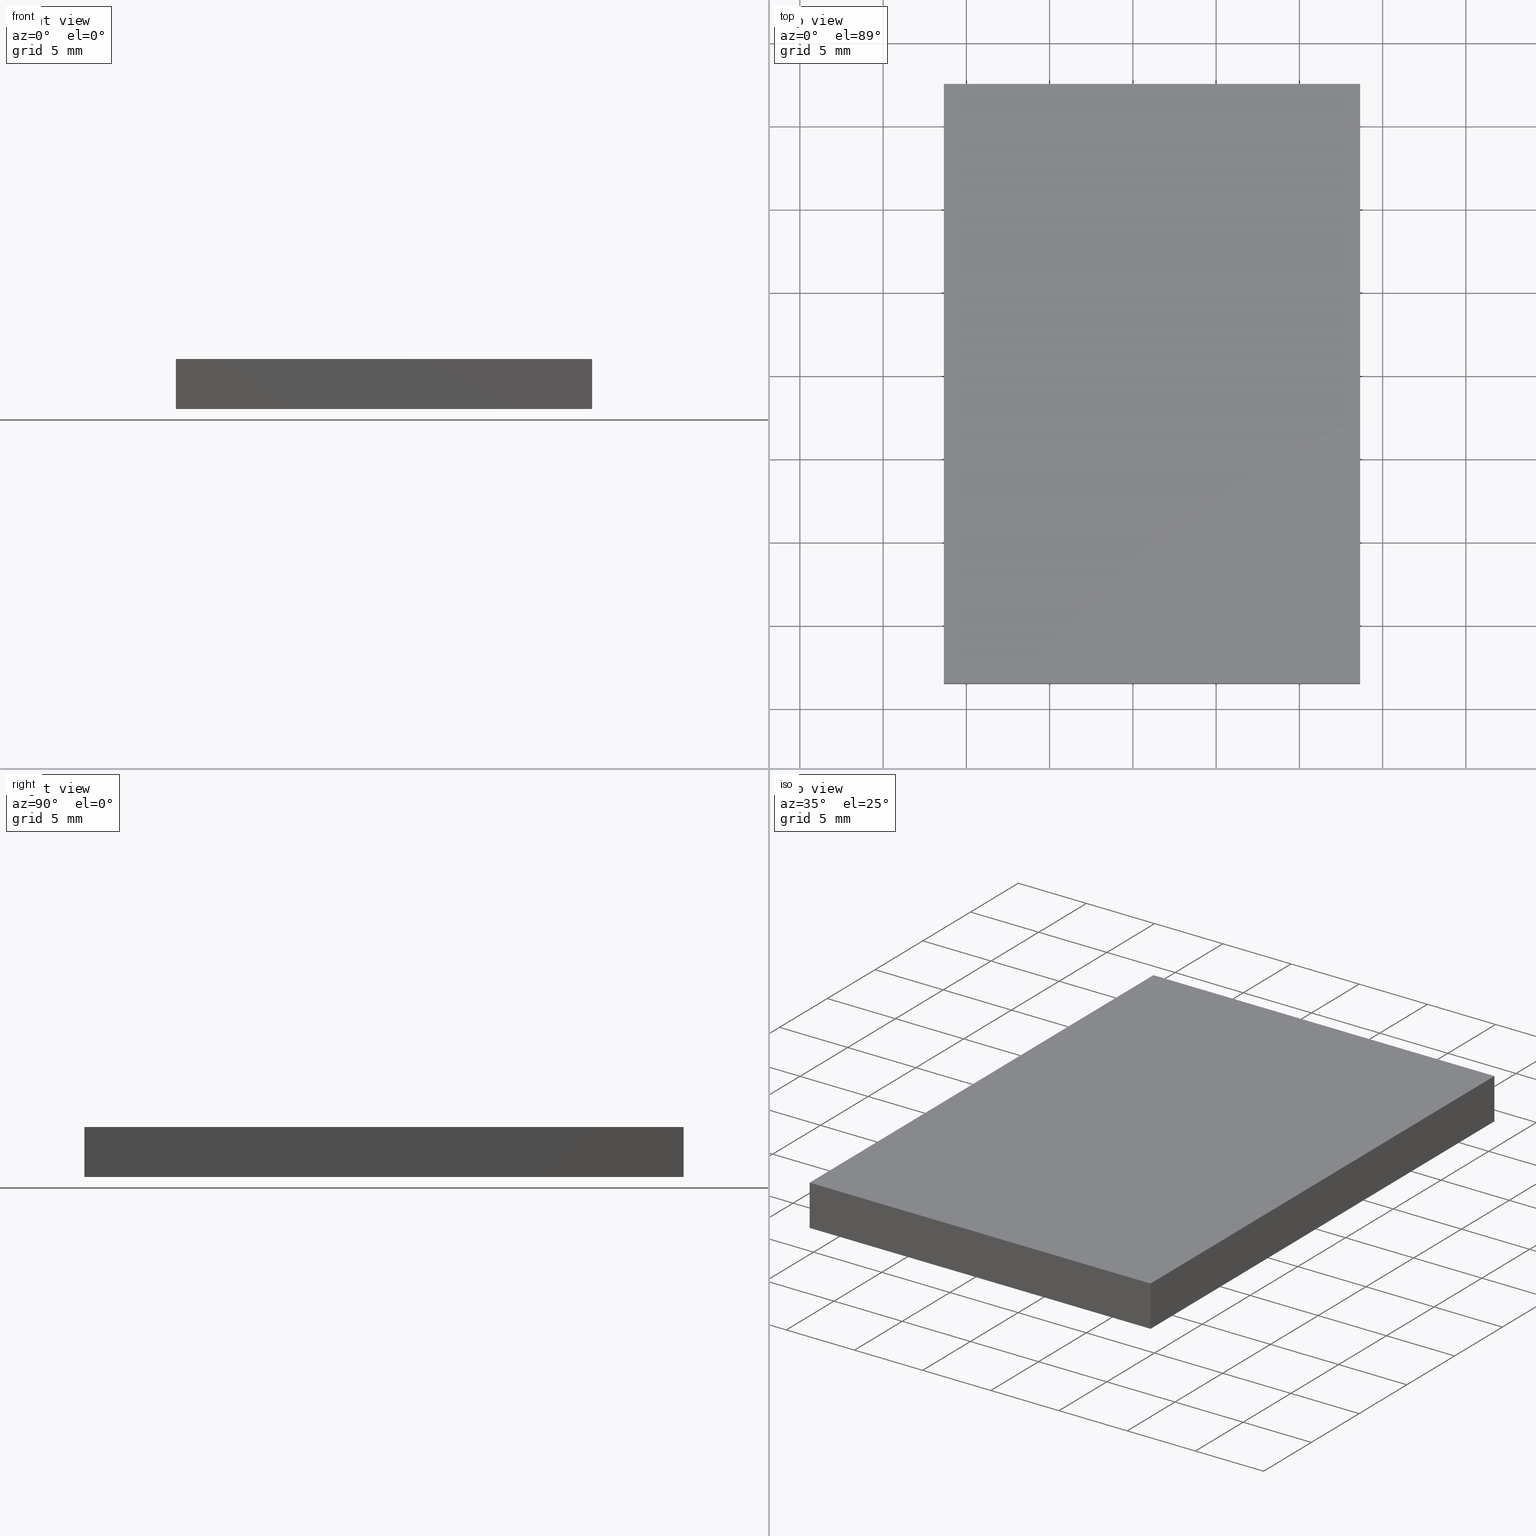
[diagram: canonical four-view strip — front | top / right | iso, engineering-drawing reading convention]
A machine part, canonical four-view strip (front | top / right | iso — engineering-drawing reading convention). The complete STEP part file that produces these views, byte-faithful:
ISO-10303-21;
HEADER;
FILE_DESCRIPTION (( 'STEP AP203' ),
    '1' );
FILE_NAME ('340521.STEP',
    '2019-07-30T07:28:20',
    ( '' ),
    ( '' ),
    'SwSTEP 2.0',
    'SolidWorks 2016',
    '' );
FILE_SCHEMA (( 'CONFIG_CONTROL_DESIGN' ));
ENDSEC;

DATA;
#1 = LINE ( 'NONE', #219, #186 ) ;
#2 = CC_DESIGN_DATE_AND_TIME_ASSIGNMENT ( #232, #275, ( #20 ) ) ;
#3 = ORIENTED_EDGE ( 'NONE', *, *, #249, .F. ) ;
#4 = LOCAL_TIME ( 15, 28, 20.00000000000000000, #71 ) ;
#5 = DESIGN_CONTEXT ( 'detailed design', #97, 'design' ) ;
#6 = APPROVAL ( #56, 'δָ��' ) ;
#7 = APPROVAL_ROLE ( '' ) ;
#8 = PERSON_AND_ORGANIZATION ( #128, #28 ) ;
#9 = ORIENTED_EDGE ( 'NONE', *, *, #183, .F. ) ;
#10 = DATE_TIME_ROLE ( 'classification_date' ) ;
#11 = CC_DESIGN_APPROVAL ( #281, ( #178 ) ) ;
#12 = AXIS2_PLACEMENT_3D ( 'NONE', #62, #89, #265 ) ;
#13 = CARTESIAN_POINT ( 'NONE',  ( 18.64837398373983700, 7.520325203252024700, 3.000000000000000000 ) ) ;
#14 = VECTOR ( 'NONE', #17, 1000.000000000000000 ) ;
#15 = ADVANCED_FACE ( 'NONE', ( #297 ), #213, .F. ) ;
#16 = CARTESIAN_POINT ( 'NONE',  ( -6.351626016260162500, 7.520325203252024700, 3.000000000000000000 ) ) ;
#17 = DIRECTION ( 'NONE',  ( -0.0000000000000000000, -0.0000000000000000000, -1.000000000000000000 ) ) ;
#18 = COORDINATED_UNIVERSAL_TIME_OFFSET ( 8, 0, .AHEAD. ) ;
#19 = DIRECTION ( 'NONE',  ( 1.000000000000000000, 0.0000000000000000000, 0.0000000000000000000 ) ) ;
#20 = SECURITY_CLASSIFICATION ( '', '', #280 ) ;
#21 = DIRECTION ( 'NONE',  ( 1.204669080539449300E-016, -1.000000000000000000, 0.0000000000000000000 ) ) ;
#22 = DIRECTION ( 'NONE',  ( -0.0000000000000000000, -0.0000000000000000000, -1.000000000000000000 ) ) ;
#23 = DIRECTION ( 'NONE',  ( 1.000000000000000000, 0.0000000000000000000, 0.0000000000000000000 ) ) ;
#24 = DATE_AND_TIME ( #214, #27 ) ;
#25 = LINE ( 'NONE', #305, #14 ) ;
#26 = PERSON_AND_ORGANIZATION_ROLE ( 'creator' ) ;
#27 = LOCAL_TIME ( 15, 28, 20.00000000000000000, #238 ) ;
#28 = ORGANIZATION ( 'δָ��', 'δָ��', '' ) ;
#29 = VERTEX_POINT ( 'NONE', #143 ) ;
#30 = VECTOR ( 'NONE', #21, 1000.000000000000000 ) ;
#31 = ORIENTED_EDGE ( 'NONE', *, *, #217, .T. ) ;
#32 = CC_DESIGN_PERSON_AND_ORGANIZATION_ASSIGNMENT ( #57, #182, ( #178 ) ) ;
#33 = DATE_AND_TIME ( #125, #76 ) ;
#34 = CC_DESIGN_PERSON_AND_ORGANIZATION_ASSIGNMENT ( #146, #107, ( #222 ) ) ;
#35 = EDGE_CURVE ( 'NONE', #29, #68, #269, .T. ) ;
#36 = APPROVAL_ROLE ( '' ) ;
#37 = LINE ( 'NONE', #46, #116 ) ;
#38 = ORIENTED_EDGE ( 'NONE', *, *, #217, .F. ) ;
#39 = PERSON_AND_ORGANIZATION ( #128, #28 ) ;
#40 = DIRECTION ( 'NONE',  ( -1.000000000000000000, -0.0000000000000000000, -0.0000000000000000000 ) ) ;
#41 = COORDINATED_UNIVERSAL_TIME_OFFSET ( 8, 0, .AHEAD. ) ;
#42 = VECTOR ( 'NONE', #23, 1000.000000000000000 ) ;
#43 = CARTESIAN_POINT ( 'NONE',  ( -6.351626016260158100, -28.47967479674797200, 0.0000000000000000000 ) ) ;
#44 = CC_DESIGN_APPROVAL ( #133, ( #114 ) ) ;
#45 = CC_DESIGN_DATE_AND_TIME_ASSIGNMENT ( #49, #109, ( #178 ) ) ;
#46 = CARTESIAN_POINT ( 'NONE',  ( -6.351626016260162500, 7.520325203252024700, 0.0000000000000000000 ) ) ;
#47 = DATE_TIME_ROLE ( 'creation_date' ) ;
#48 = APPROVAL_PERSON_ORGANIZATION ( #160, #6, #36 ) ;
#49 = DATE_AND_TIME ( #307, #272 ) ;
#50 = AXIS2_PLACEMENT_3D ( 'NONE', #112, #286, #237 ) ;
#51 = PERSON_AND_ORGANIZATION ( #128, #28 ) ;
#52 = ORIENTED_EDGE ( 'NONE', *, *, #249, .T. ) ;
#53 = CC_DESIGN_APPROVAL ( #227, ( #245 ) ) ;
#54 = APPROVAL_DATE_TIME ( #105, #132 ) ;
#55 = PERSON_AND_ORGANIZATION ( #128, #28 ) ;
#56 = APPROVAL_STATUS ( 'not_yet_approved' ) ;
#57 = PERSON_AND_ORGANIZATION ( #128, #28 ) ;
#58 = FACE_OUTER_BOUND ( 'NONE', #164, .T. ) ;
#59 = ORIENTED_EDGE ( 'NONE', *, *, #35, .T. ) ;
#60 = APPLICATION_CONTEXT ( 'configuration controlled 3d designs of mechanical parts and assemblies' ) ;
#61 = AXIS2_PLACEMENT_3D ( 'NONE', #174, #293, #199 ) ;
#62 = CARTESIAN_POINT ( 'NONE',  ( -6.351626016260158100, -28.47967479674797200, 3.000000000000000000 ) ) ;
#63 = FACE_OUTER_BOUND ( 'NONE', #135, .T. ) ;
#64 = CARTESIAN_POINT ( 'NONE',  ( 18.64837398373983700, 7.520325203252024700, 0.0000000000000000000 ) ) ;
#65 = CARTESIAN_POINT ( 'NONE',  ( -6.351626016260158100, -28.47967479674797200, 3.000000000000000000 ) ) ;
#66 =( LENGTH_UNIT ( ) NAMED_UNIT ( * ) SI_UNIT ( .MILLI., .METRE. ) );
#67 = CALENDAR_DATE ( 2019, 30, 7 ) ;
#68 = VERTEX_POINT ( 'NONE', #13 ) ;
#69 = DIRECTION ( 'NONE',  ( -0.0000000000000000000, -0.0000000000000000000, -1.000000000000000000 ) ) ;
#70 = CARTESIAN_POINT ( 'NONE',  ( 0.0000000000000000000, 0.0000000000000000000, 0.0000000000000000000 ) ) ;
#71 = COORDINATED_UNIVERSAL_TIME_OFFSET ( 8, 0, .AHEAD. ) ;
#72 = CC_DESIGN_PERSON_AND_ORGANIZATION_ASSIGNMENT ( #8, #85, ( #245 ) ) ;
#73 = ORIENTED_EDGE ( 'NONE', *, *, #154, .F. ) ;
#74 = CARTESIAN_POINT ( 'NONE',  ( 0.0000000000000000000, 0.0000000000000000000, 0.0000000000000000000 ) ) ;
#75 = APPLICATION_CONTEXT ( 'configuration controlled 3d designs of mechanical parts and assemblies' ) ;
#76 = LOCAL_TIME ( 15, 28, 20.00000000000000000, #98 ) ;
#77 = LOCAL_TIME ( 15, 28, 20.00000000000000000, #18 ) ;
#78 = ORIENTED_EDGE ( 'NONE', *, *, #279, .F. ) ;
#79 = CC_DESIGN_PERSON_AND_ORGANIZATION_ASSIGNMENT ( #176, #247, ( #194 ) ) ;
#80 = PERSON_AND_ORGANIZATION ( #128, #28 ) ;
#81 = ORIENTED_EDGE ( 'NONE', *, *, #291, .T. ) ;
#82 = PERSON_AND_ORGANIZATION_ROLE ( 'design_supplier' ) ;
#83 = PERSON_AND_ORGANIZATION ( #128, #28 ) ;
#84 = CALENDAR_DATE ( 2019, 30, 7 ) ;
#85 = PERSON_AND_ORGANIZATION_ROLE ( 'classification_officer' ) ;
#86 = LINE ( 'NONE', #310, #129 ) ;
#87 = FACE_OUTER_BOUND ( 'NONE', #234, .T. ) ;
#88 = PLANE ( 'NONE',  #12 ) ;
#89 = DIRECTION ( 'NONE',  ( 0.0000000000000000000, 1.000000000000000000, 0.0000000000000000000 ) ) ;
#90 = VECTOR ( 'NONE', #288, 1000.000000000000000 ) ;
#91 = CARTESIAN_POINT ( 'NONE',  ( -6.351626016260162500, 7.520325203252024700, 3.000000000000000000 ) ) ;
#92 = CARTESIAN_POINT ( 'NONE',  ( -6.351626016260162500, 7.520325203252024700, 3.000000000000000000 ) ) ;
#93 = DIRECTION ( 'NONE',  ( -0.0000000000000000000, -0.0000000000000000000, -1.000000000000000000 ) ) ;
#94 = FACE_OUTER_BOUND ( 'NONE', #140, .T. ) ;
#95 = LOCAL_TIME ( 15, 28, 20.00000000000000000, #41 ) ;
#96 = EDGE_CURVE ( 'NONE', #267, #224, #25, .T. ) ;
#97 = APPLICATION_CONTEXT ( 'configuration controlled 3d designs of mechanical parts and assemblies' ) ;
#98 = COORDINATED_UNIVERSAL_TIME_OFFSET ( 8, 0, .AHEAD. ) ;
#99 = VECTOR ( 'NONE', #40, 1000.000000000000000 ) ;
#100 = CC_DESIGN_PERSON_AND_ORGANIZATION_ASSIGNMENT ( #39, #26, ( #114 ) ) ;
#101 = AXIS2_PLACEMENT_3D ( 'NONE', #169, #285, #145 ) ;
#102 = DATE_AND_TIME ( #67, #77 ) ;
#103 = ORIENTED_EDGE ( 'NONE', *, *, #235, .T. ) ;
#104 = PRODUCT_DEFINITION_SHAPE ( 'NONE', 'NONE',  #114 ) ;
#105 = DATE_AND_TIME ( #134, #287 ) ;
#106 = DATE_AND_TIME ( #84, #216 ) ;
#107 = PERSON_AND_ORGANIZATION_ROLE ( 'design_supplier' ) ;
#108 = APPROVAL_STATUS ( 'not_yet_approved' ) ;
#109 = DATE_TIME_ROLE ( 'creation_date' ) ;
#110 = APPROVAL_PERSON_ORGANIZATION ( #195, #227, #141 ) ;
#111 = PERSON_AND_ORGANIZATION_ROLE ( 'design_owner' ) ;
#112 = CARTESIAN_POINT ( 'NONE',  ( 18.64837398373983700, 7.520325203252024700, 3.000000000000000000 ) ) ;
#113 = CC_DESIGN_DATE_AND_TIME_ASSIGNMENT ( #102, #47, ( #114 ) ) ;
#114 = PRODUCT_DEFINITION ( 'δ֪', '', #222, #5 ) ;
#115 = APPROVAL_PERSON_ORGANIZATION ( #263, #132, #7 ) ;
#116 = VECTOR ( 'NONE', #124, 1000.000000000000000 ) ;
#117 = PLANE ( 'NONE',  #123 ) ;
#118 = PLANE ( 'NONE',  #253 ) ;
#119 = CALENDAR_DATE ( 2019, 30, 7 ) ;
#120 = APPROVAL_PERSON_ORGANIZATION ( #303, #133, #155 ) ;
#121 = APPROVAL ( #108, 'δָ��' ) ;
#122 = VERTEX_POINT ( 'NONE', #165 ) ;
#123 = AXIS2_PLACEMENT_3D ( 'NONE', #215, #240, #268 ) ;
#124 = DIRECTION ( 'NONE',  ( 1.204669080539449300E-016, -1.000000000000000000, 0.0000000000000000000 ) ) ;
#125 = CALENDAR_DATE ( 2019, 30, 7 ) ;
#126 = LINE ( 'NONE', #64, #90 ) ;
#127 = DIRECTION ( 'NONE',  ( 0.0000000000000000000, 0.0000000000000000000, 1.000000000000000000 ) ) ;
#128 = PERSON ( 'δָ��', 'δָ��', 'δָ��', ('δָ��'), ('δָ��'), ('δָ��') ) ;
#129 = VECTOR ( 'NONE', #93, 1000.000000000000000 ) ;
#130 = CLOSED_SHELL ( 'NONE', ( #212, #162, #15, #139, #168, #257 ) ) ;
#131 = UNCERTAINTY_MEASURE_WITH_UNIT (LENGTH_MEASURE( 1.000000000000000100E-005 ), #66, 'distance_accuracy_value', 'NONE');
#132 = APPROVAL ( #300, 'δָ��' ) ;
#133 = APPROVAL ( #294, 'δָ��' ) ;
#134 = CALENDAR_DATE ( 2019, 30, 7 ) ;
#135 = EDGE_LOOP ( 'NONE', ( #81, #3, #255, #211 ) ) ;
#136 = APPROVAL_ROLE ( '' ) ;
#137 = SECURITY_CLASSIFICATION_LEVEL ( 'unclassified' ) ;
#138 = CALENDAR_DATE ( 2019, 30, 7 ) ;
#139 = ADVANCED_FACE ( 'NONE', ( #87 ), #236, .F. ) ;
#140 = EDGE_LOOP ( 'NONE', ( #208, #78, #229, #292 ) ) ;
#141 = APPROVAL_ROLE ( '' ) ;
#142 = PERSON_AND_ORGANIZATION_ROLE ( 'classification_officer' ) ;
#143 = CARTESIAN_POINT ( 'NONE',  ( 18.64837398373984800, -28.47967479674797200, 3.000000000000000000 ) ) ;
#144 = VECTOR ( 'NONE', #190, 1000.000000000000000 ) ;
#145 = DIRECTION ( 'NONE',  ( 0.0000000000000000000, -0.0000000000000000000, -1.000000000000000000 ) ) ;
#146 = PERSON_AND_ORGANIZATION ( #128, #28 ) ;
#147 = DIRECTION ( 'NONE',  ( -1.204669080539449300E-016, 1.000000000000000000, 0.0000000000000000000 ) ) ;
#148 = COORDINATED_UNIVERSAL_TIME_OFFSET ( 8, 0, .AHEAD. ) ;
#149 = EDGE_LOOP ( 'NONE', ( #103, #197, #59, #159 ) ) ;
#150 = DIRECTION ( 'NONE',  ( 1.000000000000000000, 0.0000000000000000000, 0.0000000000000000000 ) ) ;
#151 = DATE_AND_TIME ( #119, #254 ) ;
#152 = ORIENTED_EDGE ( 'NONE', *, *, #35, .F. ) ;
#153 = CARTESIAN_POINT ( 'NONE',  ( -6.351626016260162500, 7.520325203252024700, 3.000000000000000000 ) ) ;
#154 = EDGE_CURVE ( 'NONE', #122, #277, #126, .T. ) ;
#155 = APPROVAL_ROLE ( '' ) ;
#156 = APPROVAL_DATE_TIME ( #24, #6 ) ;
#157 = CC_DESIGN_APPROVAL ( #121, ( #222 ) ) ;
#158 =( GEOMETRIC_REPRESENTATION_CONTEXT ( 3 ) GLOBAL_UNCERTAINTY_ASSIGNED_CONTEXT ( ( #131 ) ) GLOBAL_UNIT_ASSIGNED_CONTEXT ( ( #66, #170, #241 ) ) REPRESENTATION_CONTEXT ( 'NONE', 'WORKASPACE' ) );
#159 = ORIENTED_EDGE ( 'NONE', *, *, #179, .T. ) ;
#160 = PERSON_AND_ORGANIZATION ( #128, #28 ) ;
#161 = CC_DESIGN_APPROVAL ( #6, ( #231 ) ) ;
#162 = ADVANCED_FACE ( 'NONE', ( #63 ), #88, .F. ) ;
#163 = DATE_AND_TIME ( #202, #95 ) ;
#164 = EDGE_LOOP ( 'NONE', ( #9, #38, #73, #187 ) ) ;
#165 = CARTESIAN_POINT ( 'NONE',  ( 18.64837398373984800, -28.47967479674797200, 0.0000000000000000000 ) ) ;
#166 = CC_DESIGN_APPROVAL ( #132, ( #20 ) ) ;
#167 = COORDINATED_UNIVERSAL_TIME_OFFSET ( 8, 0, .AHEAD. ) ;
#168 = ADVANCED_FACE ( 'NONE', ( #228 ), #117, .T. ) ;
#169 = CARTESIAN_POINT ( 'NONE',  ( -6.351626016260162500, 7.520325203252024700, 3.000000000000000000 ) ) ;
#170 =( NAMED_UNIT ( * ) PLANE_ANGLE_UNIT ( ) SI_UNIT ( $, .RADIAN. ) );
#171 = CC_DESIGN_PERSON_AND_ORGANIZATION_ASSIGNMENT ( #298, #209, ( #222 ) ) ;
#172 = APPROVAL_DATE_TIME ( #106, #133 ) ;
#173 = VERTEX_POINT ( 'NONE', #65 ) ;
#174 = CARTESIAN_POINT ( 'NONE',  ( 0.0000000000000000000, 0.0000000000000000000, 0.0000000000000000000 ) ) ;
#175 = APPLICATION_CONTEXT ( 'configuration controlled 3d designs of mechanical parts and assemblies' ) ;
#176 = PERSON_AND_ORGANIZATION ( #128, #28 ) ;
#177 = ADVANCED_BREP_SHAPE_REPRESENTATION ( '340521', ( #260, #61 ), #158 ) ;
#178 = PRODUCT_DEFINITION ( 'δ֪', '', #231, #191 ) ;
#179 = EDGE_CURVE ( 'NONE', #68, #267, #181, .T. ) ;
#180 = COORDINATED_UNIVERSAL_TIME_OFFSET ( 8, 0, .AHEAD. ) ;
#181 = LINE ( 'NONE', #16, #276 ) ;
#182 = PERSON_AND_ORGANIZATION_ROLE ( 'creator' ) ;
#183 = EDGE_CURVE ( 'NONE', #224, #264, #37, .T. ) ;
#184 = CALENDAR_DATE ( 2019, 30, 7 ) ;
#185 = APPROVAL_STATUS ( 'not_yet_approved' ) ;
#186 = VECTOR ( 'NONE', #22, 1000.000000000000000 ) ;
#187 = ORIENTED_EDGE ( 'NONE', *, *, #291, .F. ) ;
#188 = CC_DESIGN_SECURITY_CLASSIFICATION ( #20, ( #222 ) ) ;
#189 = MECHANICAL_CONTEXT ( 'NONE', #175, 'mechanical' ) ;
#190 = DIRECTION ( 'NONE',  ( -2.891205793294678800E-016, 1.000000000000000000, -0.0000000000000000000 ) ) ;
#191 = DESIGN_CONTEXT ( 'detailed design', #60, 'design' ) ;
#192 = CC_DESIGN_DATE_AND_TIME_ASSIGNMENT ( #258, #10, ( #245 ) ) ;
#193 = EDGE_LOOP ( 'NONE', ( #309, #284, #152, #52 ) ) ;
#194 = PRODUCT ( '340521', '340521', '', ( #314 ) ) ;
#195 = PERSON_AND_ORGANIZATION ( #128, #28 ) ;
#196 = LINE ( 'NONE', #242, #42 ) ;
#197 = ORIENTED_EDGE ( 'NONE', *, *, #200, .T. ) ;
#198 = CARTESIAN_POINT ( 'NONE',  ( -6.351626016260162500, 7.520325203252024700, 0.0000000000000000000 ) ) ;
#199 = DIRECTION ( 'NONE',  ( 1.000000000000000000, 0.0000000000000000000, 0.0000000000000000000 ) ) ;
#200 = EDGE_CURVE ( 'NONE', #173, #29, #196, .T. ) ;
#201 = COORDINATED_UNIVERSAL_TIME_OFFSET ( 8, 0, .AHEAD. ) ;
#202 = CALENDAR_DATE ( 2019, 30, 7 ) ;
#203 = ORIENTED_EDGE ( 'NONE', *, *, #96, .F. ) ;
#204 = EDGE_CURVE ( 'NONE', #68, #277, #259, .T. ) ;
#205 = CC_DESIGN_SECURITY_CLASSIFICATION ( #245, ( #231 ) ) ;
#206 = APPLICATION_PROTOCOL_DEFINITION ( 'international standard', 'config_control_design', 1994, #175 ) ;
#207 = PERSON_AND_ORGANIZATION ( #128, #28 ) ;
#208 = ORIENTED_EDGE ( 'NONE', *, *, #183, .T. ) ;
#209 = PERSON_AND_ORGANIZATION_ROLE ( 'creator' ) ;
#210 = APPROVAL_DATE_TIME ( #163, #227 ) ;
#211 = ORIENTED_EDGE ( 'NONE', *, *, #279, .T. ) ;
#212 = ADVANCED_FACE ( 'NONE', ( #94 ), #244, .F. ) ;
#213 = PLANE ( 'NONE',  #50 ) ;
#214 = CALENDAR_DATE ( 2019, 30, 7 ) ;
#215 = CARTESIAN_POINT ( 'NONE',  ( 0.0000000000000000000, 0.0000000000000000000, 3.000000000000000000 ) ) ;
#216 = LOCAL_TIME ( 15, 28, 20.00000000000000000, #148 ) ;
#217 = EDGE_CURVE ( 'NONE', #277, #224, #266, .T. ) ;
#218 = ORIENTED_EDGE ( 'NONE', *, *, #179, .F. ) ;
#219 = CARTESIAN_POINT ( 'NONE',  ( -6.351626016260158100, -28.47967479674797200, 3.000000000000000000 ) ) ;
#220 = DIRECTION ( 'NONE',  ( -1.000000000000000000, -0.0000000000000000000, -0.0000000000000000000 ) ) ;
#221 = CC_DESIGN_PERSON_AND_ORGANIZATION_ASSIGNMENT ( #55, #111, ( #296 ) ) ;
#222 = PRODUCT_DEFINITION_FORMATION_WITH_SPECIFIED_SOURCE ( '�κ�', '', #194, .NOT_KNOWN. ) ;
#223 = SHAPE_DEFINITION_REPRESENTATION ( #304, #177 ) ;
#224 = VERTEX_POINT ( 'NONE', #198 ) ;
#225 = DIRECTION ( 'NONE',  ( 1.000000000000000000, 1.204669080539449300E-016, -0.0000000000000000000 ) ) ;
#226 = CARTESIAN_POINT ( 'NONE',  ( 18.64837398373983700, 7.520325203252024700, 3.000000000000000000 ) ) ;
#227 = APPROVAL ( #185, 'δָ��' ) ;
#228 = FACE_OUTER_BOUND ( 'NONE', #149, .T. ) ;
#229 = ORIENTED_EDGE ( 'NONE', *, *, #235, .F. ) ;
#230 = CC_DESIGN_PERSON_AND_ORGANIZATION_ASSIGNMENT ( #83, #278, ( #231 ) ) ;
#231 = PRODUCT_DEFINITION_FORMATION_WITH_SPECIFIED_SOURCE ( '�κ�', '', #296, .NOT_KNOWN. ) ;
#232 = DATE_AND_TIME ( #184, #4 ) ;
#233 = PRODUCT_RELATED_PRODUCT_CATEGORY ( 'detail', '', ( #194 ) ) ;
#234 = EDGE_LOOP ( 'NONE', ( #31, #203, #218, #273 ) ) ;
#235 = EDGE_CURVE ( 'NONE', #267, #173, #251, .T. ) ;
#236 = PLANE ( 'NONE',  #101 ) ;
#237 = DIRECTION ( 'NONE',  ( 2.891205793294678800E-016, -1.000000000000000000, 0.0000000000000000000 ) ) ;
#238 = COORDINATED_UNIVERSAL_TIME_OFFSET ( 8, 0, .AHEAD. ) ;
#239 = LINE ( 'NONE', #306, #289 ) ;
#240 = DIRECTION ( 'NONE',  ( -0.0000000000000000000, 0.0000000000000000000, 1.000000000000000000 ) ) ;
#241 =( NAMED_UNIT ( * ) SI_UNIT ( $, .STERADIAN. ) SOLID_ANGLE_UNIT ( ) );
#242 = CARTESIAN_POINT ( 'NONE',  ( -6.351626016260158100, -28.47967479674797200, 3.000000000000000000 ) ) ;
#243 = APPROVAL_PERSON_ORGANIZATION ( #51, #121, #136 ) ;
#244 = PLANE ( 'NONE',  #283 ) ;
#245 = SECURITY_CLASSIFICATION ( '', '', #137 ) ;
#246 = DIRECTION ( 'NONE',  ( -0.0000000000000000000, 0.0000000000000000000, 1.000000000000000000 ) ) ;
#247 = PERSON_AND_ORGANIZATION_ROLE ( 'design_owner' ) ;
#248 = PERSON_AND_ORGANIZATION ( #128, #28 ) ;
#249 = EDGE_CURVE ( 'NONE', #29, #122, #86, .T. ) ;
#250 = COORDINATED_UNIVERSAL_TIME_OFFSET ( 8, 0, .AHEAD. ) ;
#251 = LINE ( 'NONE', #153, #30 ) ;
#252 = CC_DESIGN_PERSON_AND_ORGANIZATION_ASSIGNMENT ( #80, #142, ( #20 ) ) ;
#253 = AXIS2_PLACEMENT_3D ( 'NONE', #70, #246, #19 ) ;
#254 = LOCAL_TIME ( 15, 28, 20.00000000000000000, #250 ) ;
#255 = ORIENTED_EDGE ( 'NONE', *, *, #200, .F. ) ;
#256 = APPROVAL_ROLE ( '' ) ;
#257 = ADVANCED_FACE ( 'NONE', ( #58 ), #118, .F. ) ;
#258 = DATE_AND_TIME ( #138, #274 ) ;
#259 = LINE ( 'NONE', #226, #308 ) ;
#260 = MANIFOLD_SOLID_BREP ( '͹̨-����1', #130 ) ;
#261 = CARTESIAN_POINT ( 'NONE',  ( 18.64837398373983700, 7.520325203252024700, 3.000000000000000000 ) ) ;
#262 = PRODUCT_RELATED_PRODUCT_CATEGORY ( 'detail', '', ( #296 ) ) ;
#263 = PERSON_AND_ORGANIZATION ( #128, #28 ) ;
#264 = VERTEX_POINT ( 'NONE', #43 ) ;
#265 = DIRECTION ( 'NONE',  ( 0.0000000000000000000, -0.0000000000000000000, 1.000000000000000000 ) ) ;
#266 = LINE ( 'NONE', #290, #99 ) ;
#267 = VERTEX_POINT ( 'NONE', #91 ) ;
#268 = DIRECTION ( 'NONE',  ( 1.000000000000000000, 0.0000000000000000000, 0.0000000000000000000 ) ) ;
#269 = LINE ( 'NONE', #261, #144 ) ;
#270 = APPLICATION_PROTOCOL_DEFINITION ( 'international standard', 'config_control_design', 1994, #97 ) ;
#271 = APPLICATION_PROTOCOL_DEFINITION ( 'international standard', 'config_control_design', 1994, #75 ) ;
#272 = LOCAL_TIME ( 15, 28, 20.00000000000000000, #180 ) ;
#273 = ORIENTED_EDGE ( 'NONE', *, *, #204, .T. ) ;
#274 = LOCAL_TIME ( 15, 28, 20.00000000000000000, #201 ) ;
#275 = DATE_TIME_ROLE ( 'classification_date' ) ;
#276 = VECTOR ( 'NONE', #220, 1000.000000000000000 ) ;
#277 = VERTEX_POINT ( 'NONE', #312 ) ;
#278 = PERSON_AND_ORGANIZATION_ROLE ( 'creator' ) ;
#279 = EDGE_CURVE ( 'NONE', #173, #264, #1, .T. ) ;
#280 = SECURITY_CLASSIFICATION_LEVEL ( 'unclassified' ) ;
#281 = APPROVAL ( #299, 'δָ��' ) ;
#282 = APPLICATION_PROTOCOL_DEFINITION ( 'international standard', 'config_control_design', 1994, #60 ) ;
#283 = AXIS2_PLACEMENT_3D ( 'NONE', #92, #225, #147 ) ;
#284 = ORIENTED_EDGE ( 'NONE', *, *, #204, .F. ) ;
#285 = DIRECTION ( 'NONE',  ( 0.0000000000000000000, -1.000000000000000000, 0.0000000000000000000 ) ) ;
#286 = DIRECTION ( 'NONE',  ( -1.000000000000000000, -2.891205793294678800E-016, 0.0000000000000000000 ) ) ;
#287 = LOCAL_TIME ( 15, 28, 20.00000000000000000, #167 ) ;
#288 = DIRECTION ( 'NONE',  ( -2.891205793294678800E-016, 1.000000000000000000, -0.0000000000000000000 ) ) ;
#289 = VECTOR ( 'NONE', #150, 1000.000000000000000 ) ;
#290 = CARTESIAN_POINT ( 'NONE',  ( -6.351626016260162500, 7.520325203252024700, 0.0000000000000000000 ) ) ;
#291 = EDGE_CURVE ( 'NONE', #264, #122, #239, .T. ) ;
#292 = ORIENTED_EDGE ( 'NONE', *, *, #96, .T. ) ;
#293 = DIRECTION ( 'NONE',  ( 0.0000000000000000000, 0.0000000000000000000, 1.000000000000000000 ) ) ;
#294 = APPROVAL_STATUS ( 'not_yet_approved' ) ;
#295 = DIRECTION ( 'NONE',  ( 1.000000000000000000, 0.0000000000000000000, 0.0000000000000000000 ) ) ;
#296 = PRODUCT ( '340521', '340521', '', ( #189 ) ) ;
#297 = FACE_OUTER_BOUND ( 'NONE', #193, .T. ) ;
#298 = PERSON_AND_ORGANIZATION ( #128, #28 ) ;
#299 = APPROVAL_STATUS ( 'not_yet_approved' ) ;
#300 = APPROVAL_STATUS ( 'not_yet_approved' ) ;
#301 = CC_DESIGN_PERSON_AND_ORGANIZATION_ASSIGNMENT ( #207, #82, ( #231 ) ) ;
#302 = APPROVAL_DATE_TIME ( #33, #281 ) ;
#303 = PERSON_AND_ORGANIZATION ( #128, #28 ) ;
#304 = PRODUCT_DEFINITION_SHAPE ( 'NONE', 'NONE',  #178 ) ;
#305 = CARTESIAN_POINT ( 'NONE',  ( -6.351626016260162500, 7.520325203252024700, 3.000000000000000000 ) ) ;
#306 = CARTESIAN_POINT ( 'NONE',  ( -6.351626016260158100, -28.47967479674797200, 0.0000000000000000000 ) ) ;
#307 = CALENDAR_DATE ( 2019, 30, 7 ) ;
#308 = VECTOR ( 'NONE', #69, 1000.000000000000000 ) ;
#309 = ORIENTED_EDGE ( 'NONE', *, *, #154, .T. ) ;
#310 = CARTESIAN_POINT ( 'NONE',  ( 18.64837398373984800, -28.47967479674797200, 3.000000000000000000 ) ) ;
#311 = AXIS2_PLACEMENT_3D ( 'NONE', #74, #127, #295 ) ;
#312 = CARTESIAN_POINT ( 'NONE',  ( 18.64837398373983700, 7.520325203252024700, 0.0000000000000000000 ) ) ;
#313 = APPROVAL_PERSON_ORGANIZATION ( #248, #281, #256 ) ;
#314 = MECHANICAL_CONTEXT ( 'NONE', #75, 'mechanical' ) ;
#315 = APPROVAL_DATE_TIME ( #151, #121 ) ;
ENDSEC;
END-ISO-10303-21;
